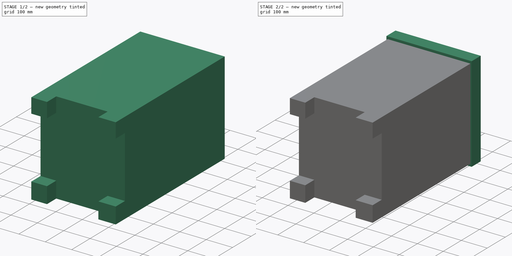
[diagram: build sequence overview — one tinted view per stage of 2, left to right]
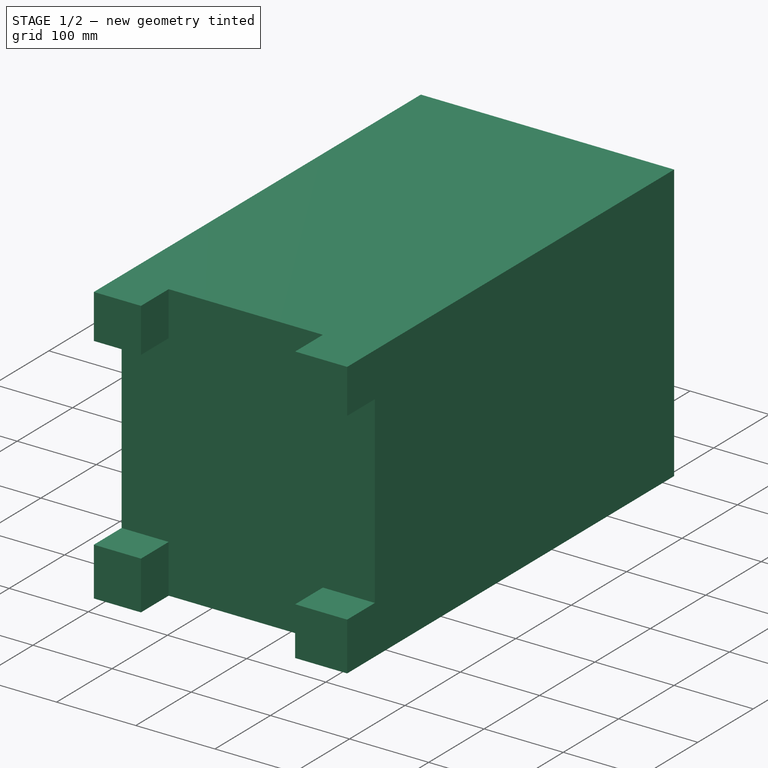
[diagram: stage 1 of 2 — iso view after this stage's code; geometry added in this stage tinted green]
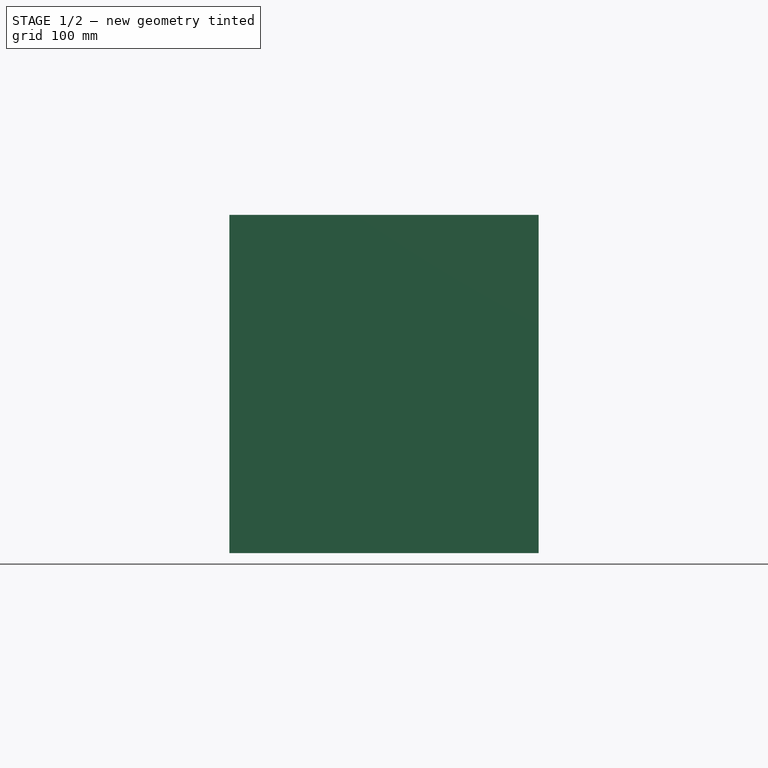
[diagram: stage 1 of 2 — front view after this stage's code; geometry added in this stage tinted green]
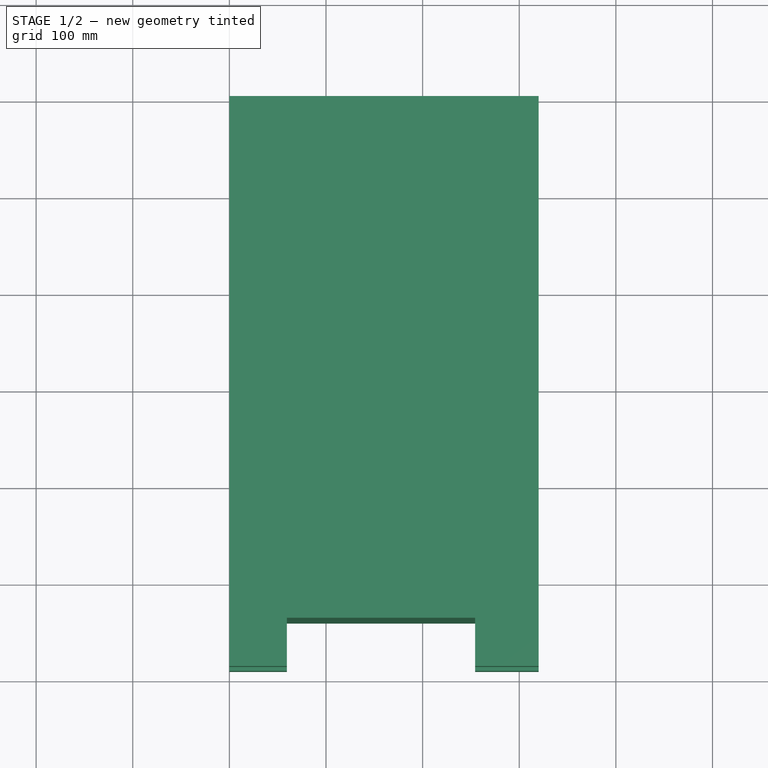
[diagram: stage 1 of 2 — top view after this stage's code; geometry added in this stage tinted green]
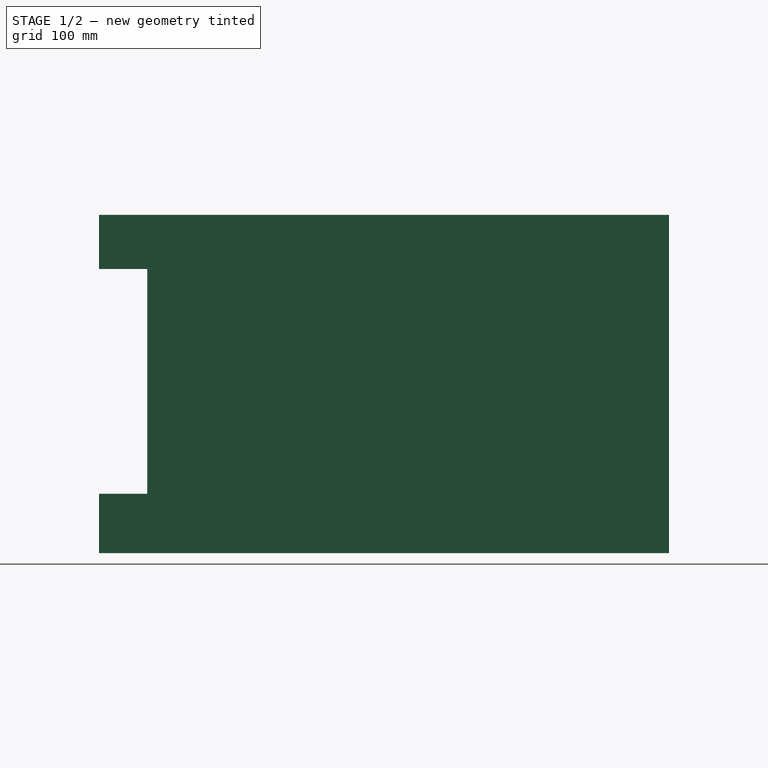
[diagram: stage 1 of 2 — right view after this stage's code; geometry added in this stage tinted green]
FCSTD DOCUMENT  (FreeCAD 1.0R39319 (Git))
Label: nightstand-32x35x59cm
License: All rights reserved
LicenseURL: https://en.wikipedia.org/wiki/All_rights_reserved
objects: Sketcher::SketchObject×4, PartDesign::Pad×3, PartDesign::Pocket×1, PartDesign::Body×1
note: 21 computed .brp shape members not serialized (recipe doc carries the construction recipe); baked Part::Feature solids carry a one-line shape summary decoded from their .brp

FEATURE [Sketcher::SketchObject] Sketch
  ArcFitTolerance = 1e-06
  AttachmentSupport = -> [XZ_Plane]
  FullyConstrained = true
  MakeInternals = false
  MapMode = 5
  Placement = pos=(0,0,0) rot=(1,0,0;1.5708rad)
  sketch-geometry (4):
    g0: LineSegment StartX=0 StartY=0 StartZ=0 EndX=320 EndY=0 EndZ=0
    g1: LineSegment StartX=320 StartY=0 StartZ=0 EndX=320 EndY=350 EndZ=0
    g2: LineSegment StartX=320 StartY=350 StartZ=0 EndX=0 EndY=350 EndZ=0
    g3: LineSegment StartX=0 StartY=350 StartZ=0 EndX=0 EndY=0 EndZ=0
  constraints (11):
    c: Coincident(g0,g1)
    c: Coincident(g1,g2)
    c: Coincident(g2,g3)
    c: Coincident(g3,g0)
    c: Horizontal(g0)
    c: Horizontal(g2)
    c: Vertical(g1)
    c: Vertical(g3)
    c: Distance(g1,g3) = 320
    c: Distance(g0,g2) = 350
    c: Coincident(g0,g-1)
FEATURE [PartDesign::Pad] Pad
  Direction = (0,-1,2e-16)
  Length = 590
  Length2 = 10
  Placement = pos=(0,0,0) rot=(1,0,0;1.5708rad)
  Profile = -> Sketch
  ReferenceAxis = -> Sketch [N_Axis]
  Refine = true
  Suppressed = false
  Type = 0
FEATURE [Sketcher::SketchObject] Sketch001
  ArcFitTolerance = 1e-06
  AttachmentSupport = -> [Pad]
  FullyConstrained = false
  MakeInternals = false
  MapMode = 5
  Placement = pos=(0,-590,0) rot=(1,0,0;1.5708rad)
  sketch-geometry (12):
    g0: LineSegment StartX=-35.0697 StartY=294.049 StartZ=0 EndX=-35.0697 EndY=61.387 EndZ=0
    g1: LineSegment StartX=-35.0697 StartY=61.387 StartZ=0 EndX=59.5085 EndY=61.387 EndZ=0
    g2: LineSegment StartX=365.942 StartY=61.387 StartZ=0 EndX=365.942 EndY=294.049 EndZ=0
    g3: LineSegment StartX=365.942 StartY=294.049 StartZ=0 EndX=254.34 EndY=294.049 EndZ=0
    g4: LineSegment StartX=59.5085 StartY=365.929 StartZ=0 EndX=59.5085 EndY=294.049 EndZ=0
    g5: LineSegment StartX=59.5085 StartY=-35.0828 StartZ=0 EndX=254.34 EndY=-35.0828 EndZ=0
    g6: LineSegment StartX=254.34 StartY=-35.0828 StartZ=0 EndX=254.34 EndY=61.387 EndZ=0
    g7: LineSegment StartX=254.34 StartY=365.929 StartZ=0 EndX=59.5085 EndY=365.929 EndZ=0
    g8: LineSegment StartX=59.5085 StartY=61.387 StartZ=0 EndX=59.5085 EndY=-35.0828 EndZ=0
    g9: LineSegment StartX=59.5085 StartY=294.049 StartZ=0 EndX=-35.0697 EndY=294.049 EndZ=0
    g10: LineSegment StartX=254.34 StartY=294.049 StartZ=0 EndX=254.34 EndY=365.929 EndZ=0
    g11: LineSegment StartX=254.34 StartY=61.387 StartZ=0 EndX=365.942 EndY=61.387 EndZ=0
  constraints (23):
    c: Coincident(g0,g1)
    c: Coincident(g11,g2)
    c: Coincident(g2,g3)
    c: Coincident(g9,g0)
    c: Vertical(g0)
    c: Vertical(g2)
    c: Horizontal(g1)
    c: Horizontal(g3)
    c: Coincident(g8,g5)
    c: Coincident(g5,g6)
    c: Coincident(g10,g7)
    c: Coincident(g7,g4)
    c: Vertical(g4)
    c: Vertical(g6)
    c: Horizontal(g5)
    c: Horizontal(g7)
    c: PointOnObject(g4,g9)
    c: PointOnObject(g3,g10)
    c: PointOnObject(g9,g4)
    c: PointOnObject(g6,g11)
    c: PointOnObject(g10,g3)
    c: Coincident(g1,g8)
    c: PointOnObject(g11,g6)
FEATURE [PartDesign::Pocket] Pocket
  BaseFeature = -> Pad
  Direction = (0,1,-2e-16)
  Length = 50
  Length2 = 5
  Placement = pos=(0,0,0) rot=(1,0,0;1.5708rad)
  Profile = -> Sketch001
  ReferenceAxis = -> Sketch001 [N_Axis]
  Refine = true
  Suppressed = false
  Type = 0
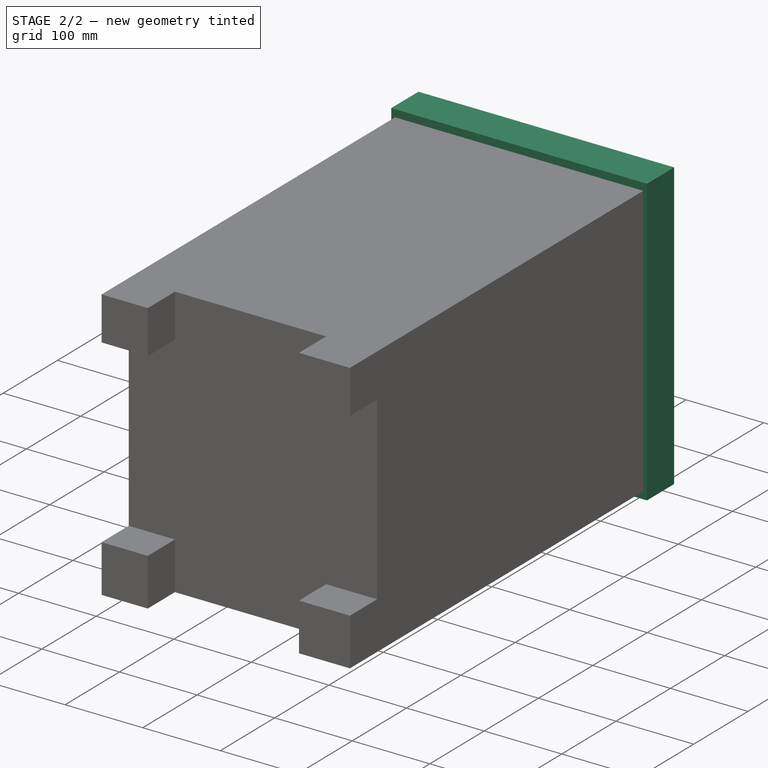
[diagram: stage 2 of 2 — iso view after this stage's code; geometry added in this stage tinted green]
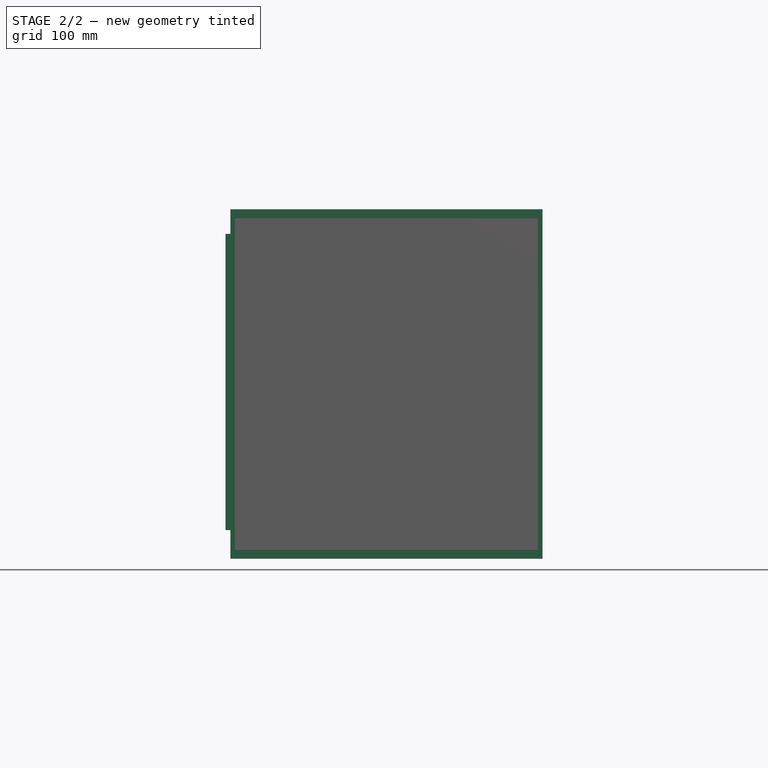
[diagram: stage 2 of 2 — front view after this stage's code; geometry added in this stage tinted green]
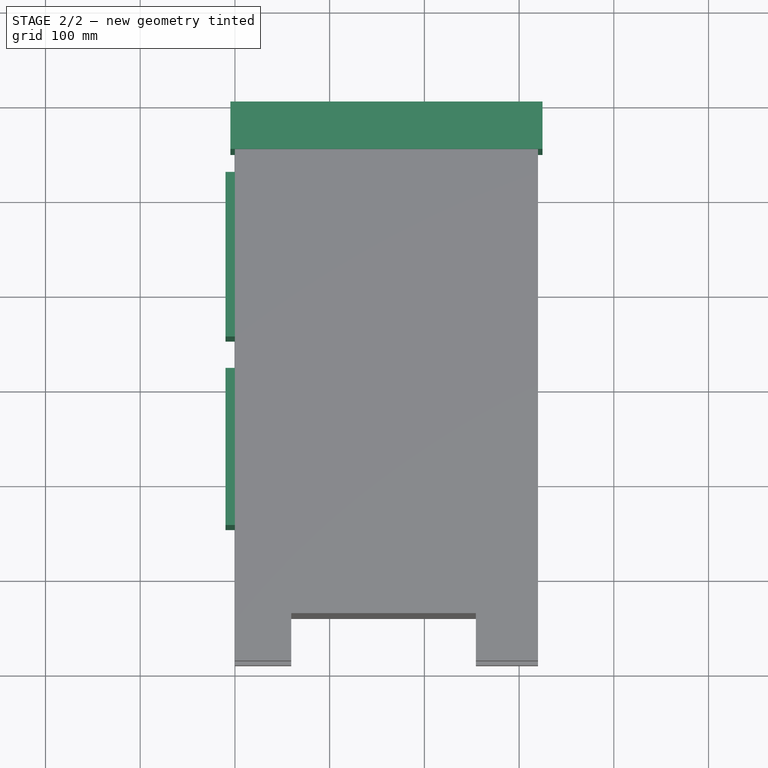
[diagram: stage 2 of 2 — top view after this stage's code; geometry added in this stage tinted green]
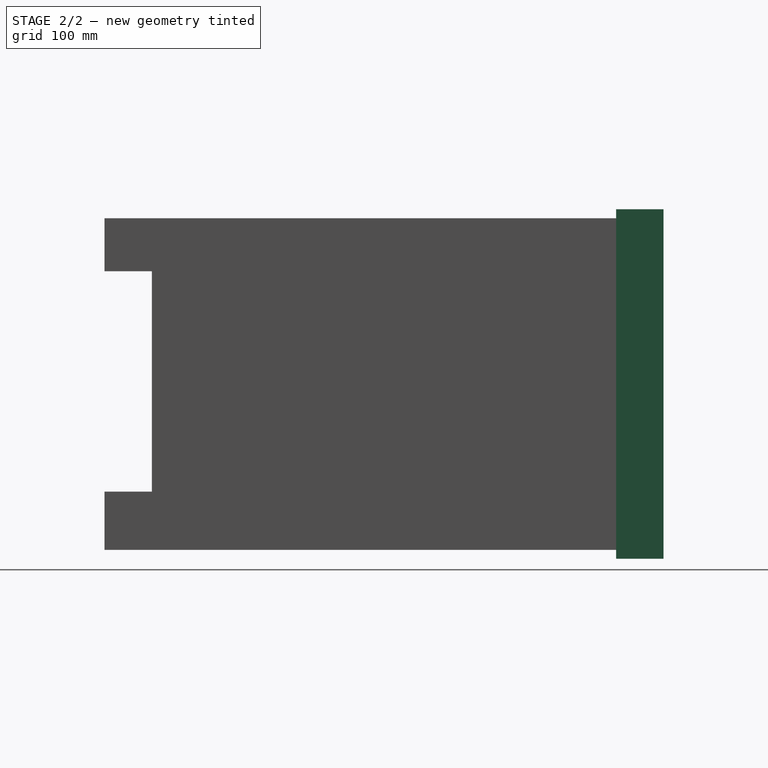
[diagram: stage 2 of 2 — right view after this stage's code; geometry added in this stage tinted green]
FEATURE [Sketcher::SketchObject] Sketch002
  ArcFitTolerance = 1e-06
  AttachmentSupport = -> [Pocket]
  FullyConstrained = false
  MakeInternals = false
  MapMode = 5
  Placement = pos=(0,0,0) rot=(0.707107,0,-0.707107;3.14159rad)
  sketch-geometry (8):
    g0: LineSegment StartX=-333.576 StartY=73.7581 StartZ=0 EndX=-20.7422 EndY=73.7581 EndZ=0
    g1: LineSegment StartX=-20.7422 StartY=73.7581 StartZ=0 EndX=-20.7422 EndY=247.554 EndZ=0
    g2: LineSegment StartX=-20.7422 StartY=247.554 StartZ=0 EndX=-333.576 EndY=247.554 EndZ=0
    g3: LineSegment StartX=-333.576 StartY=247.554 StartZ=0 EndX=-333.576 EndY=73.7581 EndZ=0
    g4: LineSegment StartX=-331.996 StartY=280.734 StartZ=0 EndX=-22.3221 EndY=280.734 EndZ=0
    g5: LineSegment StartX=-22.3221 StartY=280.734 StartZ=0 EndX=-22.3221 EndY=446.63 EndZ=0
    g6: LineSegment StartX=-22.3221 StartY=446.63 StartZ=0 EndX=-331.996 EndY=446.63 EndZ=0
    g7: LineSegment StartX=-331.996 StartY=446.63 StartZ=0 EndX=-331.996 EndY=280.734 EndZ=0
  constraints (16):
    c: Coincident(g0,g1)
    c: Coincident(g1,g2)
    c: Coincident(g2,g3)
    c: Coincident(g3,g0)
    c: Horizontal(g0)
    c: Horizontal(g2)
    c: Vertical(g1)
    c: Vertical(g3)
    c: Coincident(g4,g5)
    c: Coincident(g5,g6)
    c: Coincident(g6,g7)
    c: Coincident(g7,g4)
    c: Horizontal(g4)
    c: Horizontal(g6)
    c: Vertical(g5)
    c: Vertical(g7)
FEATURE [PartDesign::Pad] Pad001
  BaseFeature = -> Pocket
  Direction = (-1,0,-2e-16)
  Length = 10
  Length2 = 10
  Placement = pos=(0,0,0) rot=(1,0,0;1.5708rad)
  Profile = -> Sketch002
  ReferenceAxis = -> Sketch002 [N_Axis]
  Refine = true
  Suppressed = false
  Type = 0
FEATURE [Sketcher::SketchObject] Sketch003
  ArcFitTolerance = 1e-06
  AttachmentSupport = -> [Pad001]
  FullyConstrained = false
  MakeInternals = false
  MapMode = 5
  Placement = pos=(0,3.89e-14,0) rot=(-1,0,0;1.5708rad)
  sketch-geometry (4):
    g0: LineSegment StartX=-4.78461 StartY=-359.491 StartZ=0 EndX=324.757 EndY=-359.491 EndZ=0
    g1: LineSegment StartX=324.757 StartY=-359.491 StartZ=0 EndX=324.757 EndY=9.37092 EndZ=0
    g2: LineSegment StartX=324.757 StartY=9.37092 StartZ=0 EndX=-4.78461 EndY=9.37092 EndZ=0
    g3: LineSegment StartX=-4.78461 StartY=9.37092 StartZ=0 EndX=-4.78461 EndY=-359.491 EndZ=0
  constraints (8):
    c: Coincident(g0,g1)
    c: Coincident(g1,g2)
    c: Coincident(g2,g3)
    c: Coincident(g3,g0)
    c: Horizontal(g0)
    c: Horizontal(g2)
    c: Vertical(g1)
    c: Vertical(g3)
FEATURE [PartDesign::Pad] Pad002
  BaseFeature = -> Pad001
  Direction = (0,1,2e-16)
  Length = 50
  Length2 = 10
  Placement = pos=(0,0,0) rot=(1,0,0;1.5708rad)
  Profile = -> Sketch003
  ReferenceAxis = -> Sketch003 [N_Axis]
  Refine = true
  Reversed = true
  Suppressed = false
  Type = 0
FEATURE [PartDesign::Body] Body
  AllowCompound = false
  Group = -> [Sketch,Pad,Sketch001,Pocket,Sketch002,Pad001,Sketch003,Pad002]
  Origin = -> Origin
  Tip = -> Pad002
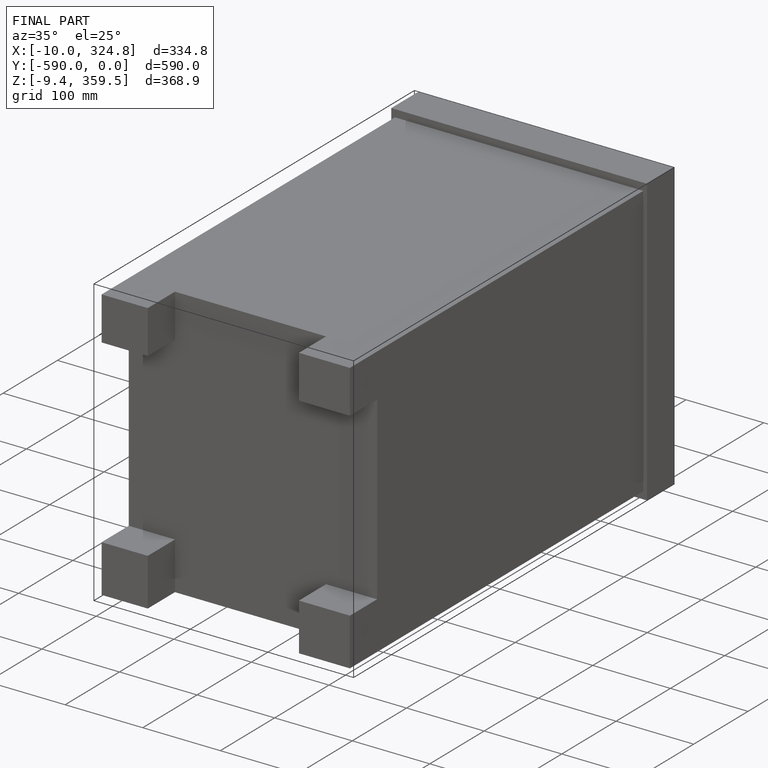
[diagram: finished part — iso view with bounding-box wireframe]
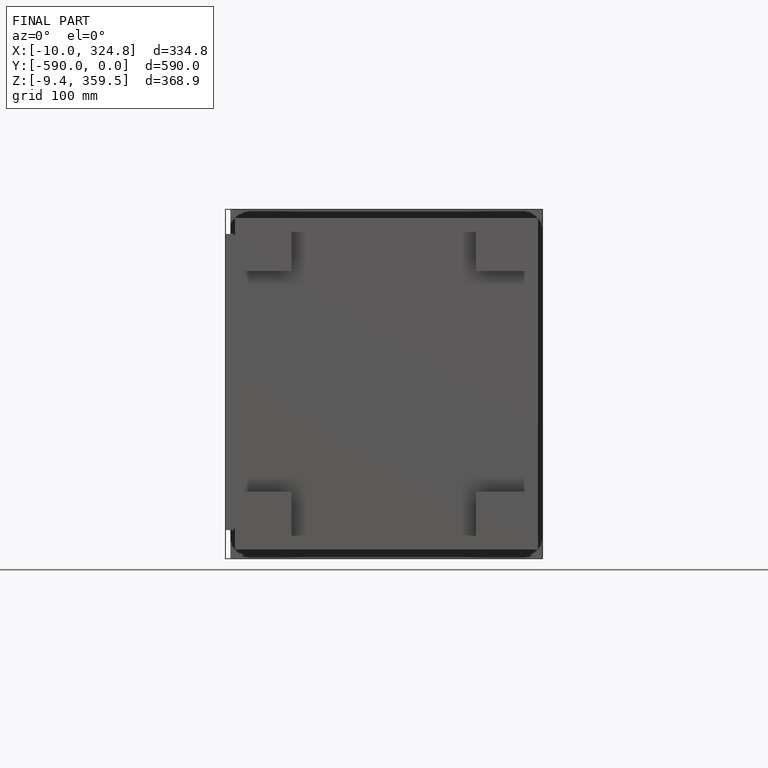
[diagram: finished part — front view with bounding-box wireframe]
